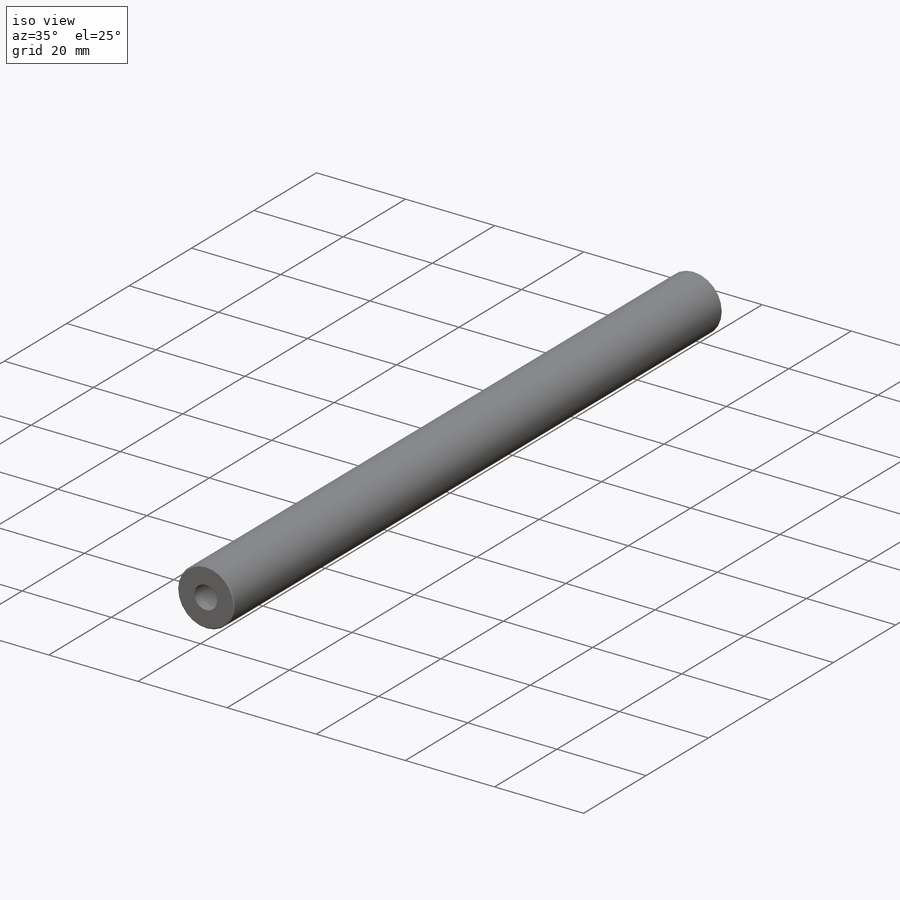
[diagram: iso view]
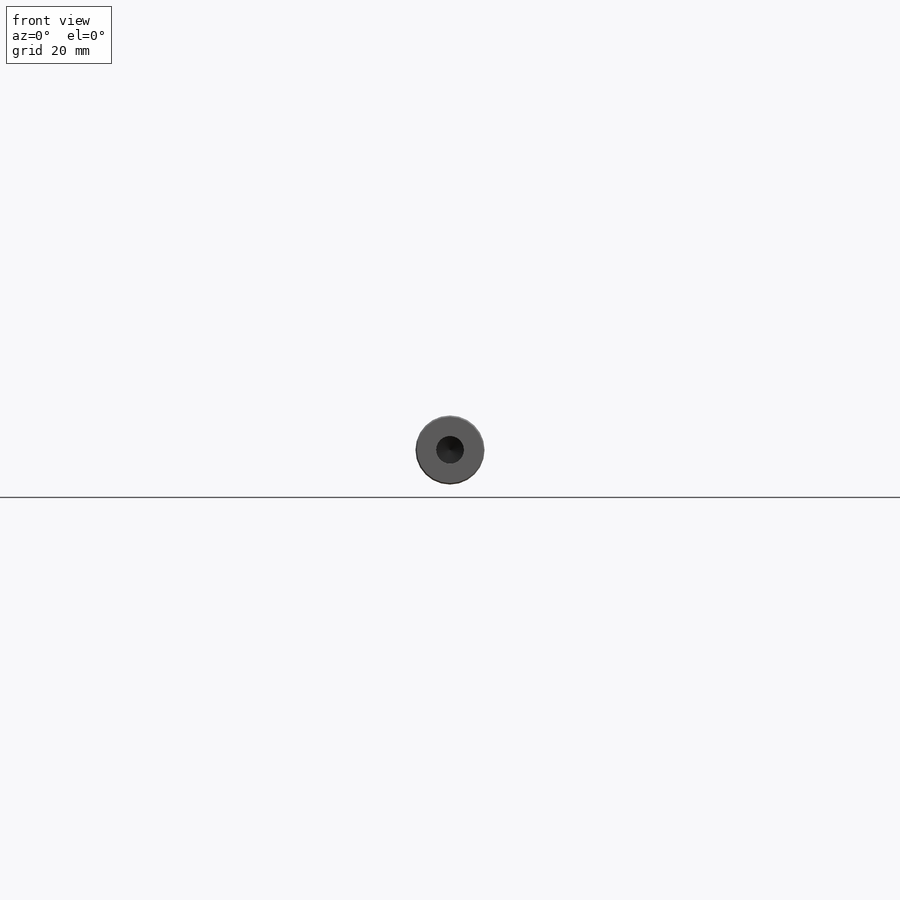
[diagram: front view]
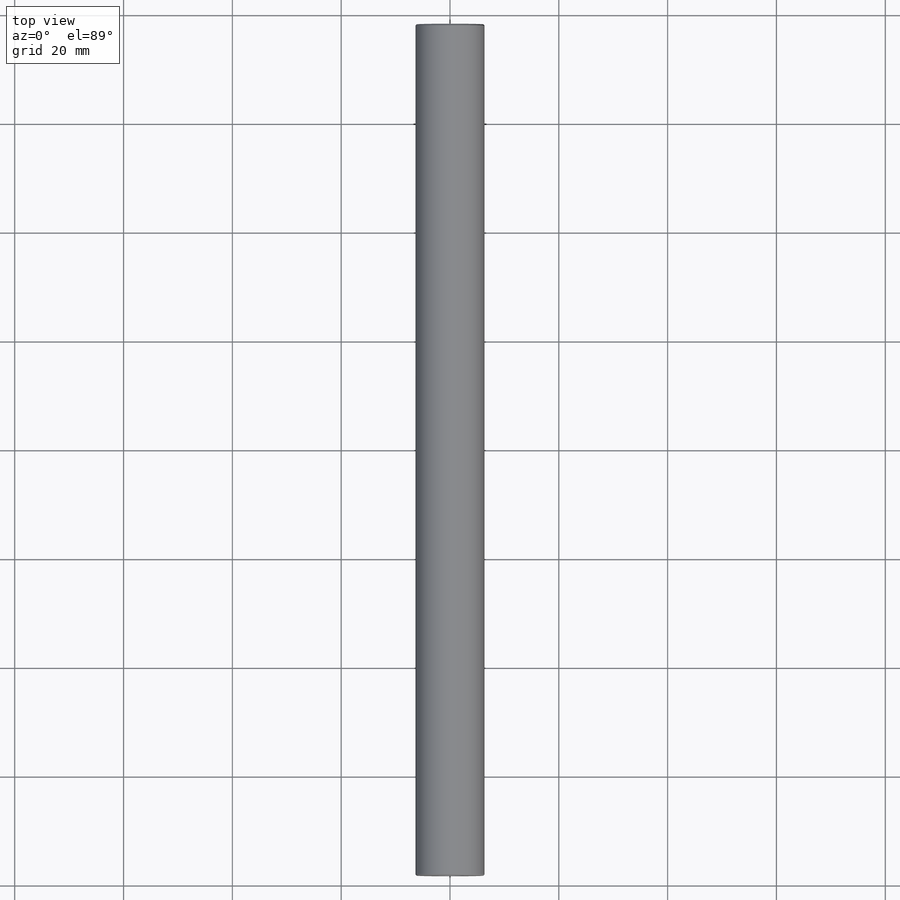
[diagram: top view]
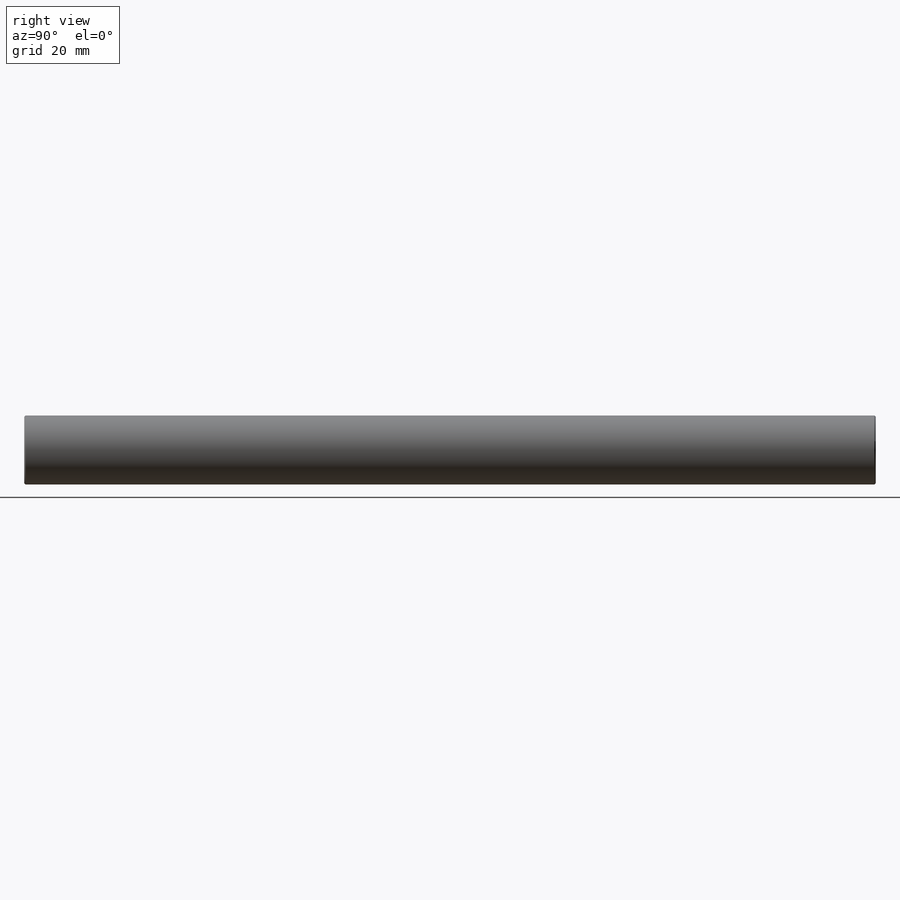
[diagram: right view]
SOLIDWORKS PART (.sldprt)
format: sldprt  version: not decoded by parser v0  size: 250,368 bytes
history: native  units: mm
features: sketch x5, hole x2, thread x2, material x1, extrude x1, chamfer x1 (+11 scaffold rows collapsed)
feature tree (23):
  scaffold x11  (default folders/planes/origin — collapsed)
  material  "6061-T6 (SS)"
  sketch  "Sketch1"  dims[c1.D1=5.08mm c1.D2=12.7mm c2.D1=5.08mm]
  extrude  "Boss-Extrude1"  Depth=156.5148mm
  hole  "1/4-20 Tapped Hole1"  Diameter=5.1054mm Depth=40mm
  sketch  "Sketch3"
  sketch  "Sketch2"  dims[hole-wizard template sketch: 47 standard entries collapsed; hole parameters kept: c15.Tap Drill Depth=40.0mm c15.D3=~14.816244mm c15.Drill Angle=118.0deg]
  thread  "Hole Thread2"  Diameter=12.7mm  [1 undecoded]
  hole  "1/4-20 Tapped Hole2"  Diameter=5.1054mm Depth=40mm
  sketch  "Sketch5"
  sketch  "Sketch4"  dims[hole-wizard template sketch: 47 standard entries collapsed; hole parameters kept: c15.Tap Drill Depth=40.0mm c15.D3=~14.816244mm c15.Drill Angle=118.0deg]
  thread  "Hole Thread3"  Diameter=12.7mm  [1 undecoded]
  chamfer  "Chamfer1"  Distance=0.254mm Angle=45deg
decode coverage: 9 of 11 modeling features carry decoded parameters
note: ~ marks probable driven/reference dimensions
note: 2 parameter values undecoded
note: suppression state not decoded; provenance and decode notes live in map.json
